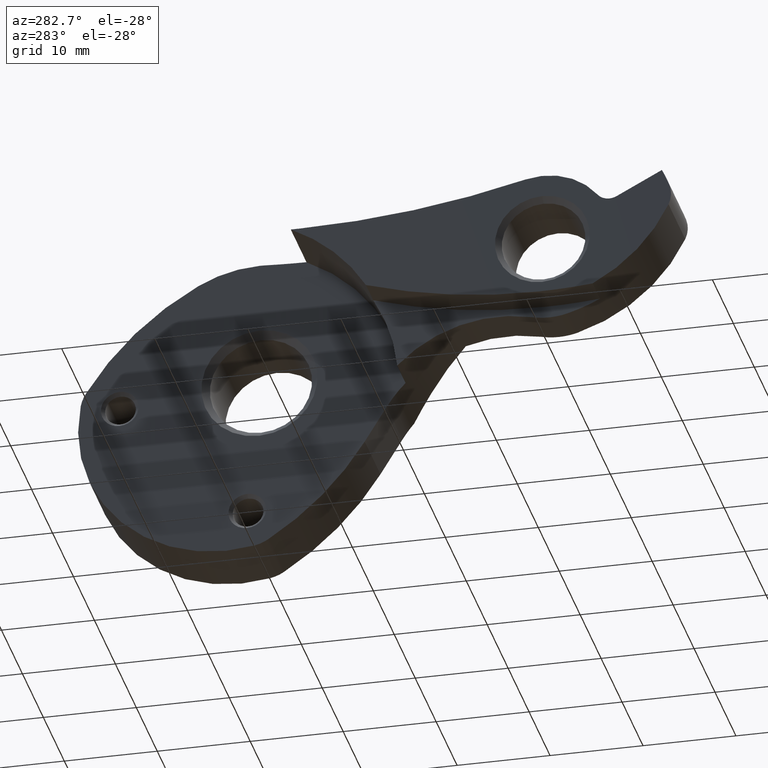
[diagram: clean part render]
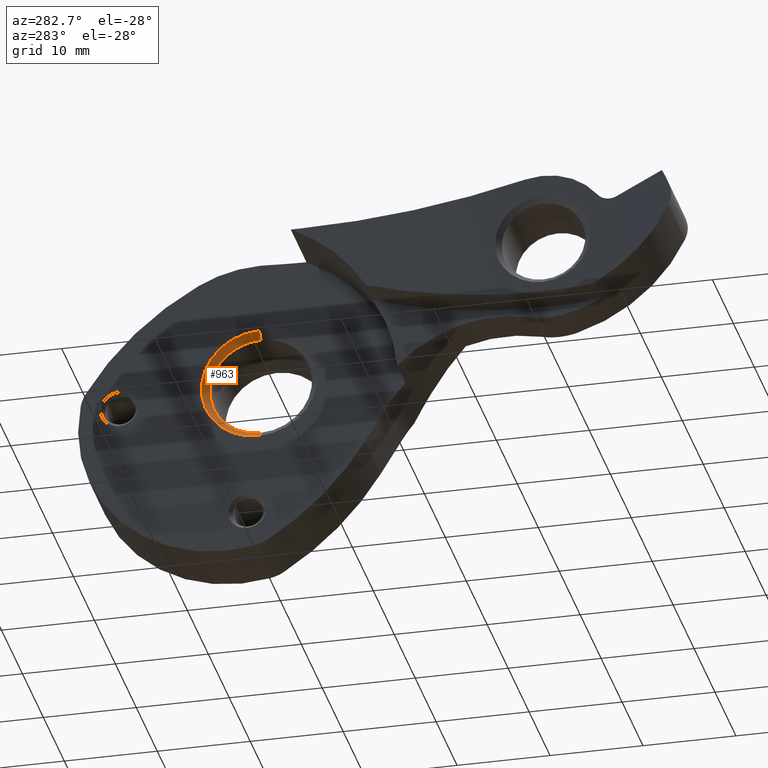
[diagram: same view with one face highlighted and labeled with its STEP entity id]
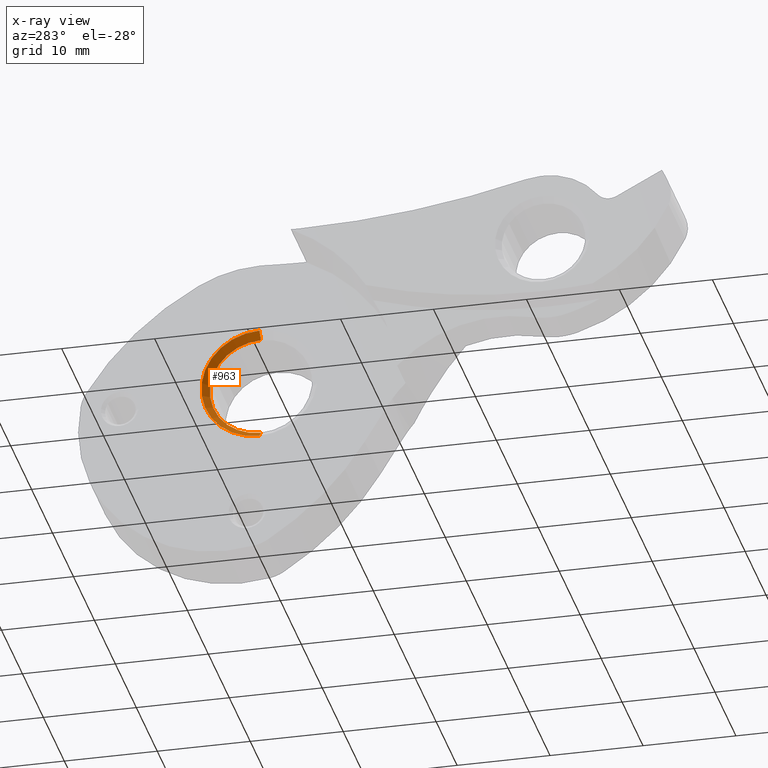
[diagram: x-ray of the same camera — body ghosted, the highlighted face saturated]
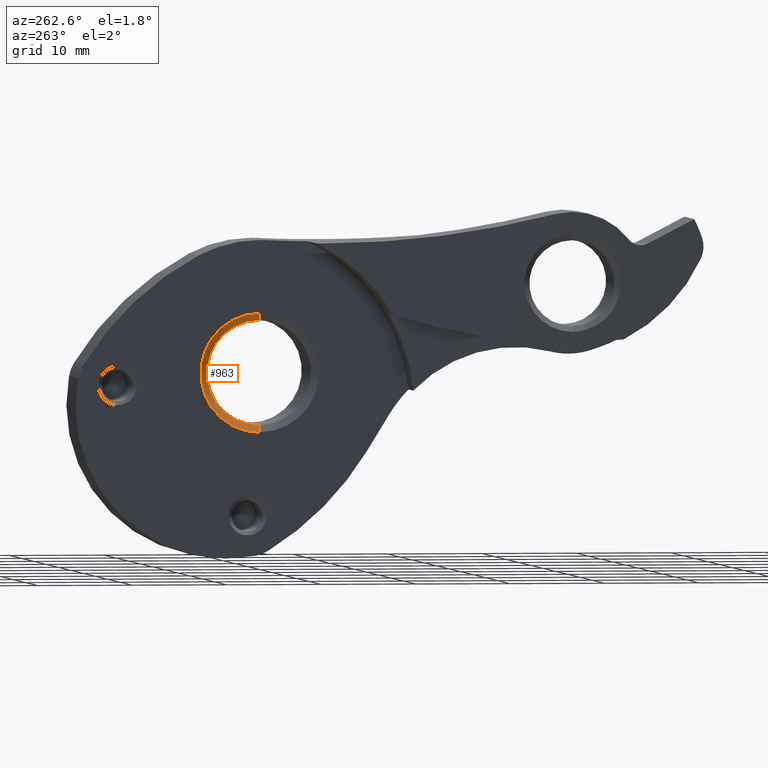
[diagram: same view with one face highlighted and labeled with its STEP entity id]
A machine part, auxiliary view. The second image highlights one B-rep face of the part: STEP entity #963.
The next image is the same camera in x-ray: the body ghosted, the highlighted face saturated — about 0% of this face is hidden behind the body in this view.
A second angle (auxiliary view) of the same face is appended — the face is thin or edge-on in the first view.
In plain terms, the highlighted conical surface has half-angle 45 deg.
Its self-contained STEP definition (entity closure, byte-faithful):
#20 = VERTEX_POINT ( 'NONE', #1073 ) ;
#60 = DIRECTION ( 'NONE',  ( -0.7071067811865483499, 8.659560562354922997E-17, -0.7071067811865466846 ) ) ;
#144 = CARTESIAN_POINT ( 'NONE',  ( 0.7499999999999850120, 0.0000000000000000000, 0.0000000000000000000 ) ) ;
#178 = VECTOR ( 'NONE', #60, 1000.000000000000000 ) ;
#181 = AXIS2_PLACEMENT_3D ( 'NONE', #1363, #1056, #1220 ) ;
#237 = VERTEX_POINT ( 'NONE', #1672 ) ;
#284 = DIRECTION ( 'NONE',  ( 0.0000000000000000000, 0.0000000000000000000, -1.000000000000000000 ) ) ;
#290 = EDGE_CURVE ( 'NONE', #20, #761, #958, .T. ) ;
#304 = VERTEX_POINT ( 'NONE', #361 ) ;
#361 = CARTESIAN_POINT ( 'NONE',  ( 0.7499999999999850120, 6.735557395310435121E-16, 5.499999999999994671 ) ) ;
#373 = AXIS2_PLACEMENT_3D ( 'NONE', #1680, #774, #1828 ) ;
#376 = ORIENTED_EDGE ( 'NONE', *, *, #1391, .F. ) ;
#412 = CIRCLE ( 'NONE', #1539, 5.499999999999994671 ) ;
#438 = VECTOR ( 'NONE', #715, 1000.000000000000000 ) ;
#715 = DIRECTION ( 'NONE',  ( -0.7071067811865483499, 0.0000000000000000000, 0.7071067811865466846 ) ) ;
#761 = VERTEX_POINT ( 'NONE', #861 ) ;
#774 = DIRECTION ( 'NONE',  ( 1.000000000000000000, 0.0000000000000000000, 0.0000000000000000000 ) ) ;
#861 = CARTESIAN_POINT ( 'NONE',  ( 0.0000000000000000000, 7.654042494670929996E-16, -6.249999999999977796 ) ) ;
#958 = LINE ( 'NONE', #1862, #178 ) ;
#963 = ADVANCED_FACE ( 'NONE', ( #1480 ), #1034, .F. ) ;
#987 = EDGE_CURVE ( 'NONE', #761, #237, #1882, .T. ) ;
#1034 = CONICAL_SURFACE ( 'NONE', #181, 6.249999999999977796, 0.7853981633974471688 ) ;
#1056 = DIRECTION ( 'NONE',  ( -1.000000000000000000, -0.0000000000000000000, -0.0000000000000000000 ) ) ;
#1073 = CARTESIAN_POINT ( 'NONE',  ( 0.7499999999999850120, 0.0000000000000000000, -5.499999999999994671 ) ) ;
#1113 = ORIENTED_EDGE ( 'NONE', *, *, #1561, .T. ) ;
#1172 = DIRECTION ( 'NONE',  ( -1.000000000000000000, -0.0000000000000000000, -0.0000000000000000000 ) ) ;
#1220 = DIRECTION ( 'NONE',  ( 0.0000000000000000000, 0.0000000000000000000, 1.000000000000000000 ) ) ;
#1363 = CARTESIAN_POINT ( 'NONE',  ( 0.0000000000000000000, 0.0000000000000000000, 0.0000000000000000000 ) ) ;
#1391 = EDGE_CURVE ( 'NONE', #304, #20, #412, .T. ) ;
#1480 = FACE_OUTER_BOUND ( 'NONE', #1830, .T. ) ;
#1513 = ORIENTED_EDGE ( 'NONE', *, *, #290, .F. ) ;
#1539 = AXIS2_PLACEMENT_3D ( 'NONE', #144, #1172, #284 ) ;
#1561 = EDGE_CURVE ( 'NONE', #304, #237, #1583, .T. ) ;
#1583 = LINE ( 'NONE', #1918, #438 ) ;
#1672 = CARTESIAN_POINT ( 'NONE',  ( 0.0000000000000000000, 0.0000000000000000000, 6.249999999999977796 ) ) ;
#1680 = CARTESIAN_POINT ( 'NONE',  ( 0.0000000000000000000, 0.0000000000000000000, 0.0000000000000000000 ) ) ;
#1828 = DIRECTION ( 'NONE',  ( 0.0000000000000000000, 0.0000000000000000000, -1.000000000000000000 ) ) ;
#1830 = EDGE_LOOP ( 'NONE', ( #1513, #376, #1113, #1935 ) ) ;
#1862 = CARTESIAN_POINT ( 'NONE',  ( 0.0000000000000000000, 7.654042494670929996E-16, -6.249999999999977796 ) ) ;
#1882 = CIRCLE ( 'NONE', #373, 6.249999999999977796 ) ;
#1918 = CARTESIAN_POINT ( 'NONE',  ( 0.0000000000000000000, 0.0000000000000000000, 6.249999999999977796 ) ) ;
#1935 = ORIENTED_EDGE ( 'NONE', *, *, #987, .F. ) ;